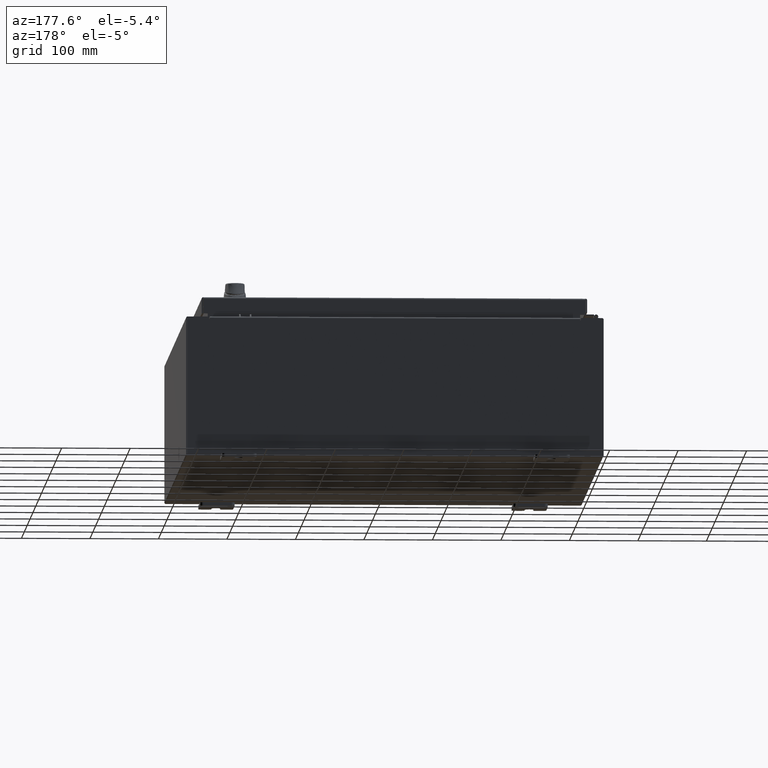
[diagram: clean part render]
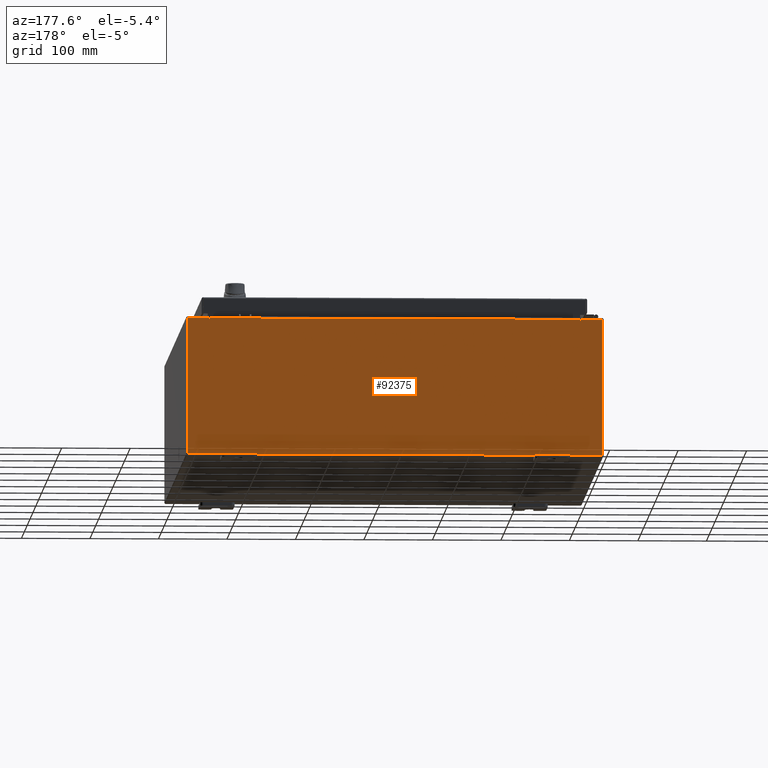
[diagram: same view with one face highlighted and labeled with its STEP entity id]
A machine part, auxiliary view. The second image highlights one B-rep face of the part: STEP entity #92375.
In plain terms, the highlighted planar face has unit normal (0, -1, 0).
Its self-contained STEP definition (entity closure, byte-faithful):
#1665 = LINE ( 'NONE', #28982, #23191 ) ;
#6386 = ORIENTED_EDGE ( 'NONE', *, *, #50315, .T. ) ;
#7634 = ORIENTED_EDGE ( 'NONE', *, *, #62465, .T. ) ;
#8245 = VECTOR ( 'NONE', #12217, 39.37007874015748100 ) ;
#9335 = EDGE_CURVE ( 'NONE', #77245, #79011, #37169, .T. ) ;
#10568 = CARTESIAN_POINT ( 'NONE',  ( -11.92530000000000000, 0.0000000000000000000, 3.925299999999999600 ) ) ;
#10870 = VERTEX_POINT ( 'NONE', #84431 ) ;
#12217 = DIRECTION ( 'NONE',  ( 0.0000000000000000000, 0.0000000000000000000, 1.000000000000000000 ) ) ;
#12533 = LINE ( 'NONE', #96396, #104072 ) ;
#13304 = ORIENTED_EDGE ( 'NONE', *, *, #57837, .T. ) ;
#13351 = LINE ( 'NONE', #28996, #99128 ) ;
#14892 = VECTOR ( 'NONE', #59971, 39.37007874015748100 ) ;
#15356 = ORIENTED_EDGE ( 'NONE', *, *, #44451, .F. ) ;
#15420 = CARTESIAN_POINT ( 'NONE',  ( 10.65587500000000200, 0.0000000000000000000, 3.874949999999999700 ) ) ;
#19832 = DIRECTION ( 'NONE',  ( -1.000000000000000000, -0.0000000000000000000, -0.0000000000000000000 ) ) ;
#20537 = PLANE ( 'NONE',  #109441 ) ;
#22119 = CARTESIAN_POINT ( 'NONE',  ( -10.63720000000000400, -0.0000000000000000000, 0.0000000000000000000 ) ) ;
#22592 = CARTESIAN_POINT ( 'NONE',  ( 11.92530000000000000, 0.0000000000000000000, -3.925299999999999600 ) ) ;
#23191 = VECTOR ( 'NONE', #102150, 39.37007874015748100 ) ;
#24640 = DIRECTION ( 'NONE',  ( 0.0000000000000000000, 0.0000000000000000000, -1.000000000000000000 ) ) ;
#24721 = CARTESIAN_POINT ( 'NONE',  ( -10.67455000000000200, 0.0000000000000000000, 3.874949999999999700 ) ) ;
#26811 = CARTESIAN_POINT ( 'NONE',  ( 10.63720000000000400, 0.0000000000000000000, 3.912299999999999700 ) ) ;
#27071 = EDGE_CURVE ( 'NONE', #60644, #10870, #103103, .T. ) ;
#27126 = EDGE_LOOP ( 'NONE', ( #27353, #37057, #15356, #13304, #94139, #117023, #85546, #33690, #96227, #7634, #91877, #6386 ) ) ;
#27353 = ORIENTED_EDGE ( 'NONE', *, *, #27071, .F. ) ;
#28982 = CARTESIAN_POINT ( 'NONE',  ( -11.92530000000000000, 0.0000000000000000000, 3.925299999999999600 ) ) ;
#28996 = CARTESIAN_POINT ( 'NONE',  ( -11.92530000000000000, 0.0000000000000000000, -3.925299999999999600 ) ) ;
#29659 = EDGE_CURVE ( 'NONE', #30976, #60644, #113022, .T. ) ;
#29715 = DIRECTION ( 'NONE',  ( 0.0000000000000000000, -1.000000000000000000, 0.0000000000000000000 ) ) ;
#30044 = VERTEX_POINT ( 'NONE', #26811 ) ;
#30077 = VECTOR ( 'NONE', #38115, 39.37007874015748100 ) ;
#30976 = VERTEX_POINT ( 'NONE', #78348 ) ;
#31243 = AXIS2_PLACEMENT_3D ( 'NONE', #15420, #79381, #24640 ) ;
#31250 = CARTESIAN_POINT ( 'NONE',  ( -11.92530000000000000, 0.0000000000000000000, 3.925299999999999600 ) ) ;
#31254 = DIRECTION ( 'NONE',  ( 0.0000000000000000000, 0.0000000000000000000, -1.000000000000000000 ) ) ;
#31952 = VERTEX_POINT ( 'NONE', #83352 ) ;
#31984 = EDGE_CURVE ( 'NONE', #31952, #77245, #100193, .T. ) ;
#33690 = ORIENTED_EDGE ( 'NONE', *, *, #31984, .T. ) ;
#33754 = DIRECTION ( 'NONE',  ( -0.0000000000000000000, -0.0000000000000000000, 1.000000000000000000 ) ) ;
#37057 = ORIENTED_EDGE ( 'NONE', *, *, #29659, .F. ) ;
#37169 = LINE ( 'NONE', #67132, #107309 ) ;
#38115 = DIRECTION ( 'NONE',  ( 1.000000000000000000, 0.0000000000000000000, 0.0000000000000000000 ) ) ;
#39146 = LINE ( 'NONE', #50784, #14892 ) ;
#40366 = DIRECTION ( 'NONE',  ( -0.0000000000000000000, 1.000000000000000000, -0.0000000000000000000 ) ) ;
#44451 = EDGE_CURVE ( 'NONE', #94041, #30976, #116658, .T. ) ;
#45430 = CARTESIAN_POINT ( 'NONE',  ( 10.63720000000000400, 0.0000000000000000000, 3.874949999999999700 ) ) ;
#45567 = CARTESIAN_POINT ( 'NONE',  ( 11.92530000000000000, 0.0000000000000000000, 3.925299999999999600 ) ) ;
#45931 = EDGE_CURVE ( 'NONE', #31952, #86540, #39146, .T. ) ;
#48595 = VERTEX_POINT ( 'NONE', #76793 ) ;
#49126 = CARTESIAN_POINT ( 'NONE',  ( -10.67455000000000200, -0.0000000000000000000, 0.0000000000000000000 ) ) ;
#50315 = EDGE_CURVE ( 'NONE', #84584, #10870, #1665, .T. ) ;
#50784 = CARTESIAN_POINT ( 'NONE',  ( 10.67454999999983300, -0.0000000000000000000, -4.633366117301815000E-013 ) ) ;
#57532 = EDGE_CURVE ( 'NONE', #72334, #30044, #81230, .T. ) ;
#57837 = EDGE_CURVE ( 'NONE', #94041, #30044, #12533, .T. ) ;
#58312 = DIRECTION ( 'NONE',  ( 0.0000000000000000000, 0.0000000000000000000, 1.000000000000000000 ) ) ;
#59971 = DIRECTION ( 'NONE',  ( -4.340572780400004900E-014, 0.0000000000000000000, -1.000000000000000000 ) ) ;
#60644 = VERTEX_POINT ( 'NONE', #24721 ) ;
#62465 = EDGE_CURVE ( 'NONE', #79011, #48595, #13351, .T. ) ;
#63991 = EDGE_CURVE ( 'NONE', #86540, #72334, #77428, .T. ) ;
#67132 = CARTESIAN_POINT ( 'NONE',  ( 11.92530000000000000, 0.0000000000000000000, 3.925299999999999600 ) ) ;
#72334 = VERTEX_POINT ( 'NONE', #45430 ) ;
#76793 = CARTESIAN_POINT ( 'NONE',  ( -11.92530000000000000, 0.0000000000000000000, -3.925299999999999600 ) ) ;
#77245 = VERTEX_POINT ( 'NONE', #45567 ) ;
#77428 = CIRCLE ( 'NONE', #31243, 0.01867499999999949400 ) ;
#78348 = CARTESIAN_POINT ( 'NONE',  ( -10.63720000000000400, -0.0000000000000000000, 3.874949999999999700 ) ) ;
#79011 = VERTEX_POINT ( 'NONE', #22592 ) ;
#79381 = DIRECTION ( 'NONE',  ( -0.0000000000000000000, 1.000000000000000000, -0.0000000000000000000 ) ) ;
#81230 = LINE ( 'NONE', #92586, #8245 ) ;
#81295 = EDGE_CURVE ( 'NONE', #48595, #84584, #104670, .T. ) ;
#81634 = VECTOR ( 'NONE', #58312, 39.37007874015748100 ) ;
#83352 = CARTESIAN_POINT ( 'NONE',  ( 10.67455000000000200, 0.0000000000000000000, 3.925299999999999600 ) ) ;
#84431 = CARTESIAN_POINT ( 'NONE',  ( -10.67455000000000200, 0.0000000000000000000, 3.925299999999999600 ) ) ;
#84503 = CARTESIAN_POINT ( 'NONE',  ( 0.0000000000000000000, 0.0000000000000000000, 0.0000000000000000000 ) ) ;
#84584 = VERTEX_POINT ( 'NONE', #31250 ) ;
#85546 = ORIENTED_EDGE ( 'NONE', *, *, #45931, .F. ) ;
#86540 = VERTEX_POINT ( 'NONE', #91907 ) ;
#86970 = AXIS2_PLACEMENT_3D ( 'NONE', #95206, #40366, #104420 ) ;
#89891 = FACE_OUTER_BOUND ( 'NONE', #27126, .T. ) ;
#91877 = ORIENTED_EDGE ( 'NONE', *, *, #81295, .T. ) ;
#91907 = CARTESIAN_POINT ( 'NONE',  ( 10.67455000000000200, 0.0000000000000000000, 3.874949999999999700 ) ) ;
#92297 = VECTOR ( 'NONE', #31254, 39.37007874015748100 ) ;
#92375 = ADVANCED_FACE ( 'NONE', ( #89891 ), #20537, .F. ) ;
#92586 = CARTESIAN_POINT ( 'NONE',  ( 10.63720000000000400, 0.0000000000000000000, 0.0000000000000000000 ) ) ;
#93675 = DIRECTION ( 'NONE',  ( 0.0000000000000000000, -0.0000000000000000000, -1.000000000000000000 ) ) ;
#94041 = VERTEX_POINT ( 'NONE', #101762 ) ;
#94139 = ORIENTED_EDGE ( 'NONE', *, *, #57532, .F. ) ;
#95206 = CARTESIAN_POINT ( 'NONE',  ( -10.65587500000000200, 0.0000000000000000000, 3.874949999999999700 ) ) ;
#96227 = ORIENTED_EDGE ( 'NONE', *, *, #9335, .T. ) ;
#96396 = CARTESIAN_POINT ( 'NONE',  ( -10.63720000000000400, 1.024442997624098700E-016, 3.912299999999999700 ) ) ;
#97755 = CARTESIAN_POINT ( 'NONE',  ( -11.92530000000000000, 0.0000000000000000000, 3.925299999999999600 ) ) ;
#99128 = VECTOR ( 'NONE', #19832, 39.37007874015748100 ) ;
#100193 = LINE ( 'NONE', #10568, #30077 ) ;
#101762 = CARTESIAN_POINT ( 'NONE',  ( -10.63720000000000400, 1.024442997624098700E-016, 3.912299999999999700 ) ) ;
#102150 = DIRECTION ( 'NONE',  ( 1.000000000000000000, 0.0000000000000000000, 0.0000000000000000000 ) ) ;
#103103 = LINE ( 'NONE', #49126, #81634 ) ;
#104072 = VECTOR ( 'NONE', #105620, 39.37007874015748100 ) ;
#104420 = DIRECTION ( 'NONE',  ( 0.0000000000000000000, 0.0000000000000000000, -1.000000000000000000 ) ) ;
#104670 = LINE ( 'NONE', #97755, #117560 ) ;
#105620 = DIRECTION ( 'NONE',  ( 1.000000000000000000, 0.0000000000000000000, 0.0000000000000000000 ) ) ;
#107309 = VECTOR ( 'NONE', #112876, 39.37007874015748100 ) ;
#109441 = AXIS2_PLACEMENT_3D ( 'NONE', #84503, #29715, #93675 ) ;
#112876 = DIRECTION ( 'NONE',  ( 0.0000000000000000000, 0.0000000000000000000, -1.000000000000000000 ) ) ;
#113022 = CIRCLE ( 'NONE', #86970, 0.01867499999999949400 ) ;
#116658 = LINE ( 'NONE', #22119, #92297 ) ;
#117023 = ORIENTED_EDGE ( 'NONE', *, *, #63991, .F. ) ;
#117560 = VECTOR ( 'NONE', #33754, 39.37007874015748100 ) ;